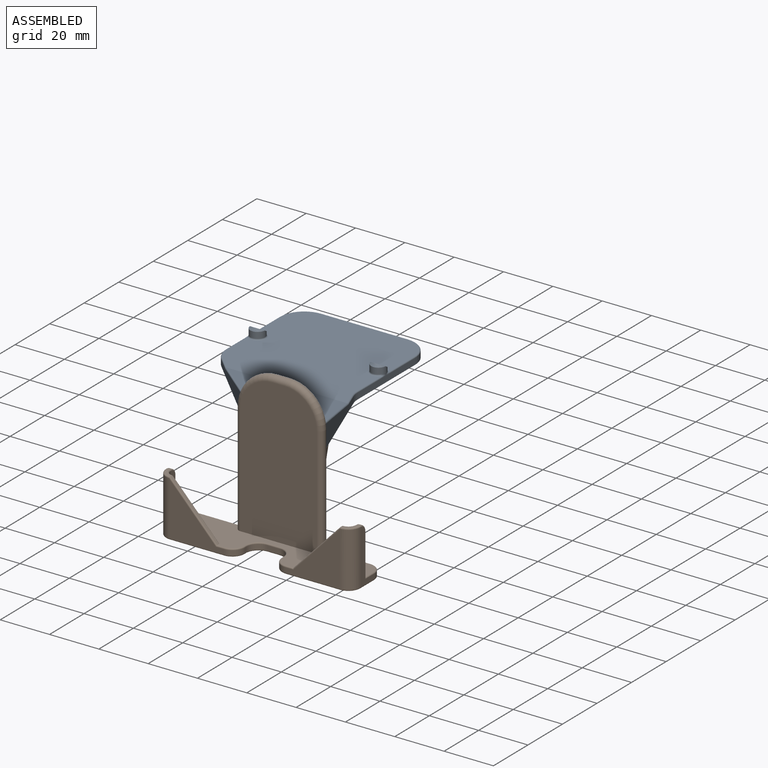
[diagram: assembled view]
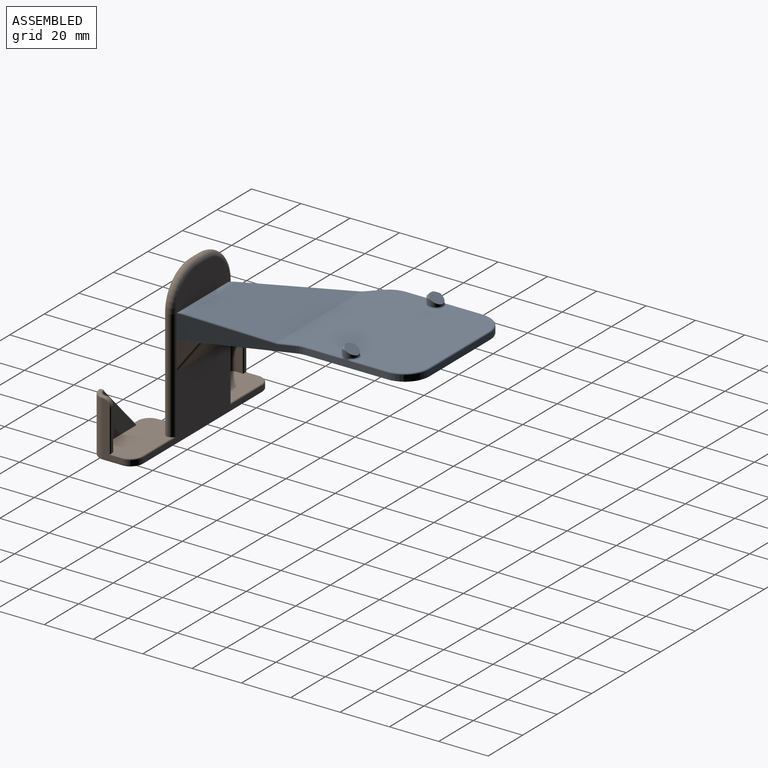
[diagram: assembled view, second angle]
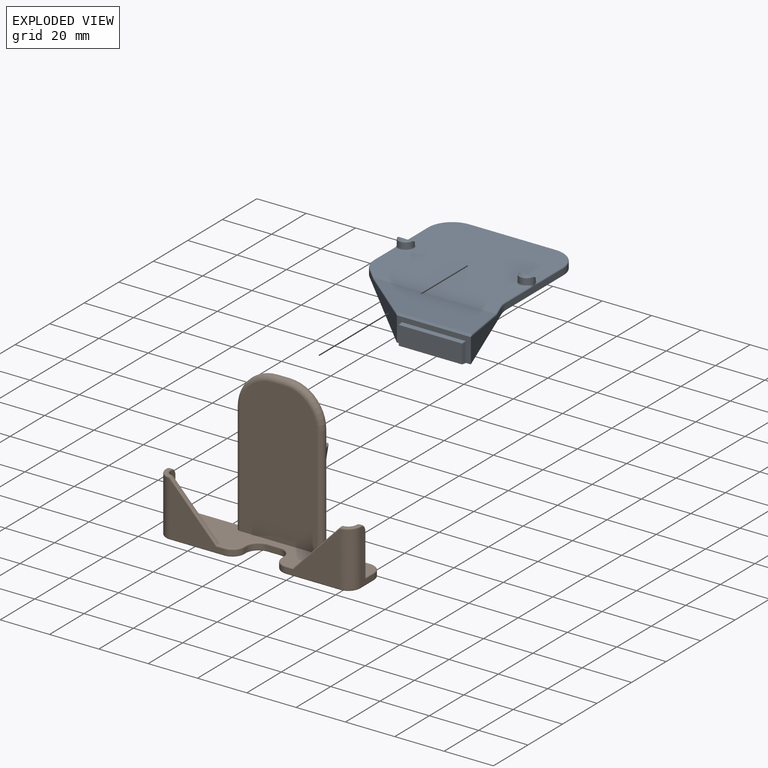
[diagram: exploded view]
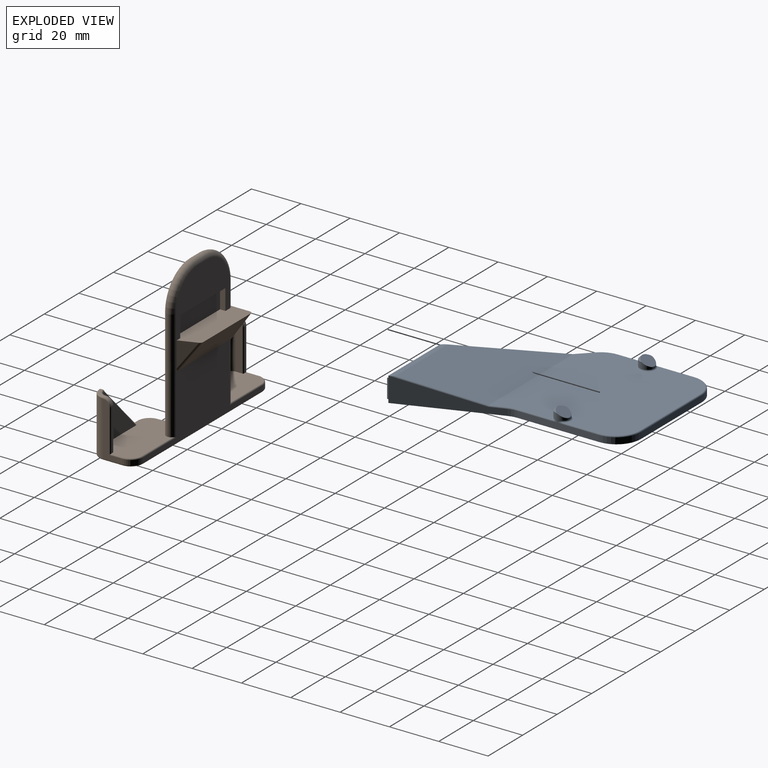
[diagram: exploded view, second angle]
ASSEMBLY  parts=2 mates=2
PART A: 58 faces, bbox 71.4x88.4x11 mm
  f0: plane 56.94x52.44mm, normal (0,0,1), area 2699.6mm2, adj f37,f38,f39,f40,f41,f43,f44,f45
  f1: plane 38.37x14.43mm, normal (0.94,0.35,0), area 230.8mm2, adj f6,f7,f23,f49,f51,f52
  f2: plane 33.19x2.5mm, normal (1,0,0), area 83mm2, adj f7,f23,f24,f32,f40,f42,f45
  f3: plane 35x2.5mm, normal (0,1,0), area 87.5mm2, adj f7,f24,f25,f38
  f4: plane 30.86x2.5mm, normal (-1,0,0), area 77.1mm2, adj f7,f25,f26,f30,f31,f43,f48
  f5: plane 37.07x37.07mm, normal (-0.71,-0.71,0), area 295.7mm2, adj f6,f7,f26,f53,f56,f57
  f6: plane 30.01x10.01mm, normal (0,-1,0), area 92mm2, adj f1,f5,f7,f16,f17,f19,f20,f52
  f7: plane 85x70mm, normal (0,0,-1), area 4130.1mm2, adj f1,f2,f3,f4,f5,f6,f18,f23
  f8: cylinder r=3mm len=6mm, axis (0,0,-1), area 35.6mm2, adj f13,f15,f27,f28,f44
  f9: plane 1.06x0.07mm, normal (0,0,1), area 0.1mm2, adj f13,f15
  f10: cylinder r=3mm len=6mm, axis (0,0,-1), area 35.6mm2, adj f12,f14,f34,f35,f39
  f11: plane 1.06x0.07mm, normal (0,0,1), area 0.1mm2, adj f12,f14
  f12: plane 6.57x5.5mm, normal (0,0.5,0.87), area 26.2mm2, adj f10,f11,f14
  f13: plane 6.57x5.5mm, normal (0,0.5,0.87), area 26.2mm2, adj f8,f9,f15
  f14: cone r=3mm half-angle=45deg, axis (0,0,-1), area 6.6mm2, adj f10,f11,f12
  f15: cone r=2mm half-angle=45deg, axis (0,0,-1), area 6.6mm2, adj f8,f9,f13
  f16: plane 31.29x1.94mm, normal (0,0,1), area 58.8mm2, adj f6,f52,f55,f57
  f17: plane 8x2mm, normal (-1,-0.09,0), area 15.7mm2, adj f6,f18,f20,f21
  f18: plane 26x2mm, normal (0,-0.09,-1), area 51.8mm2, adj f7,f17,f19,f21
  f19: plane 8x2mm, normal (1,-0.09,0), area 15.7mm2, adj f6,f18,f20,f21
  f20: plane 26x2mm, normal (0,-0.09,1), area 51.8mm2, adj f6,f17,f19,f21
  f21: plane 25.65x7.65mm, normal (0,-1,0), area 196.2mm2, adj f17,f18,f19,f20
  f22: plane 59.86x29.89mm, normal (0,0.23,0.97), area 1206.5mm2, adj f52,f54,f55,f57
  f23: cylinder r=10mm len=3.51mm, axis (0,0,-1), area 9mm2, adj f1,f2,f7,f47
  f24: cylinder r=10mm len=10mm, axis (0,0,1), area 39.3mm2, adj f2,f3,f7,f37
  f25: cylinder r=10mm len=10mm, axis (0,0,1), area 39.3mm2, adj f3,f4,f7,f41
  f26: cylinder r=10mm len=7.07mm, axis (0,0,-1), area 19.6mm2, adj f4,f5,f7,f50
  f27: bspline ~2.17x0.86mm, area 0.8mm2, adj f8,f28,f44,f46
  f28: bspline ~2.17x0.86mm, area 0.8mm2, adj f8,f27,f29,f44
  f29: bspline ~2.45x0.72mm, area 0.8mm2, adj f28,f30,f43,f44
  f30: bspline ~2.45x0.52mm, area 1.1mm2, adj f4,f29,f31,f43
  f31: bspline ~2.45x0.52mm, area 1.1mm2, adj f4,f30,f46,f48
  f32: bspline ~2.45x0.52mm, area 1.1mm2, adj f2,f33,f40,f42
  f33: bspline ~2.45x0.72mm, area 0.8mm2, adj f32,f34,f39,f40
  f34: bspline ~2.17x0.86mm, area 0.8mm2, adj f10,f33,f35,f39
  f35: bspline ~2.17x0.86mm, area 0.8mm2, adj f10,f34,f36,f39
  f36: bspline ~2.45x0.72mm, area 0.8mm2, adj f35,f39,f42,f45
  f37: torus R=9.5mm, axis (0,0,1), area 12.1mm2, adj f0,f24,f38,f40
  f38: cylinder r=0.5mm len=35mm, axis (1,0,0), area 27.5mm2, adj f0,f3,f37,f41
  f39: torus R=3.5mm, axis (0,0,1), area 11.9mm2, adj f0,f10,f33,f34,f35,f36
  f40: cylinder r=0.5mm len=14.59mm, axis (0,-1,0), area 11.4mm2, adj f0,f2,f32,f33,f37
  f41: torus R=9.5mm, axis (0,0,1), area 12.1mm2, adj f0,f25,f38,f43
  f42: bspline ~2.45x0.52mm, area 1.1mm2, adj f2,f32,f36,f45
  f43: cylinder r=0.5mm len=14.59mm, axis (0,1,0), area 11.4mm2, adj f0,f4,f29,f30,f41
  f44: torus R=3.5mm, axis (0,0,1), area 11.9mm2, adj f0,f8,f27,f28,f29,f46
  f45: cylinder r=0.5mm len=13.78mm, axis (0,-1,0), area 10.8mm2, adj f0,f2,f36,f42,f47
  f46: bspline ~2.45x0.72mm, area 0.8mm2, adj f27,f31,f44,f48
  f47: torus R=10.5mm, axis (0,0,1), area 2.9mm2, adj f0,f23,f45,f49
  f48: cylinder r=0.5mm len=11.45mm, axis (0,1,0), area 9mm2, adj f0,f4,f31,f46,f50
  f49: cylinder r=0.5mm len=6.24mm, axis (0.35,-0.94,0), area 5.1mm2, adj f0,f1,f47,f51
  f50: torus R=9.5mm, axis (0,0,1), area 6.1mm2, adj f0,f26,f48,f53
  f51: bspline ~0.61x0.53mm, area 0.1mm2, adj f1,f49,f52,f54
  f52: cylinder r=0.5mm len=32.1mm, axis (0.34,-0.91,0.21), area 25mm2, adj f1,f6,f16,f22,f51,f55
  f53: cylinder r=0.5mm len=5.72mm, axis (-0.71,0.71,0), area 6mm2, adj f0,f5,f50,f56
  f54: cylinder r=0.5mm len=48.88mm, axis (-1,0,0), area 5.6mm2, adj f0,f22,f51,f56
  f55: cylinder r=0.5mm len=30.18mm, axis (1,0,0), area 3.4mm2, adj f16,f22,f52,f57
  f56: bspline ~0.58x0.58mm, area 0.2mm2, adj f5,f53,f54,f57
  f57: cylinder r=0.5mm len=31.97mm, axis (0.7,-0.7,0.16), area 38mm2, adj f5,f6,f16,f22,f55,f56
PART B: 97 faces, bbox 80.6x27x65 mm
  f0: plane 32.89x10.49mm, normal (0,0,1), area 307mm2, adj f1,f3,f21,f36,f41,f42,f44,f94
  f1: plane 12.54x8.78mm, normal (-1,0,0), area 55mm2, adj f0,f36,f96
  f2: plane 58x31mm, normal (0,-1,0), area 1725.5mm2, adj f12,f36,f37,f38,f39,f40
  f3: plane 69.52x61.02mm, normal (0,1,0), area 1309.5mm2, adj f0,f21,f22,f23,f36,f37,f38,f39
  f4: plane 22x7.8mm, normal (1,0,0), area 64.3mm2, adj f23,f24,f54,f55,f56,f83
  f5: plane 22x21.77mm, normal (0,-1,0), area 229.7mm2, adj f24,f25,f50,f79,f93
  f6: plane 2x0.8mm, normal (-1,0,0), area 1.6mm2, adj f25,f26,f75,f91
  f7: plane 5x2mm, normal (0,-1,0), area 10mm2, adj f26,f27,f71,f89
  f8: plane 2x0.8mm, normal (1,0,0), area 1.6mm2, adj f27,f28,f70,f87
  f9: plane 22x21.77mm, normal (0,-1,0), area 229.7mm2, adj f28,f29,f57,f74,f85
  f10: plane 22x7.8mm, normal (-1,0,0), area 64.3mm2, adj f22,f29,f60,f62,f63,f78
  f11: plane 78x16.8mm, normal (0,0,-1), area 1124.5mm2, adj f69,f70,f71,f72,f73,f74,f75,f76
  f12: plane 78.2x17mm, normal (0,0,1), area 920.9mm2, adj f2,f13,f14,f15,f17,f18,f19,f30
  f13: plane 17x1mm, normal (0,1,0), area 17mm2, adj f12,f33,f62,f68
  f14: plane 19.27x18.31mm, normal (0,1,0), area 176.5mm2, adj f12,f32,f64
  f15: plane 19.5x2.5mm, normal (1,0,0), area 47.4mm2, adj f12,f32,f67,f68
  f16: plane 4.5x4.5mm, normal (0,0,1), area 6.3mm2, adj f33,f34,f58,f66
  f17: plane 17x1mm, normal (0,1,0), area 17mm2, adj f12,f31,f49,f56
  f18: plane 19.5x2.5mm, normal (-1,0,0), area 47.4mm2, adj f12,f30,f48,f49
  f19: plane 20.21x19.08mm, normal (0,1,0), area 176.5mm2, adj f12,f30,f45
  f20: plane 4.5x4.5mm, normal (0,0,1), area 6.3mm2, adj f31,f35,f47,f52
  f21: plane 31.03x12mm, normal (0,0.82,-0.57), area 409.6mm2, adj f0,f3,f36,f95,f96
  f22: cylinder r=5mm len=5mm, axis (0,0,-1), area 15.7mm2, adj f3,f10,f61,f80
  f23: cylinder r=5mm len=5mm, axis (0,0,1), area 15.7mm2, adj f3,f4,f53,f84
  f24: cylinder r=5mm len=22mm, axis (0,0,-1), area 172.8mm2, adj f4,f5,f50,f52,f81
  f25: cylinder r=5mm len=5mm, axis (0,0,-1), area 15.7mm2, adj f5,f6,f77,f92
  f26: cylinder r=5mm len=5mm, axis (0,0,1), area 15.7mm2, adj f6,f7,f73,f90
  f27: cylinder r=5mm len=5mm, axis (0,0,-1), area 15.7mm2, adj f7,f8,f69,f88
  f28: cylinder r=5mm len=5mm, axis (0,0,1), area 15.7mm2, adj f8,f9,f72,f86
  f29: cylinder r=5mm len=22mm, axis (0,0,1), area 172.8mm2, adj f9,f10,f57,f58,f76
  f30: cylinder r=3mm len=19.5mm, axis (0,0,-1), area 92.6mm2, adj f12,f18,f19,f46,f47
  f31: cylinder r=3mm len=3mm, axis (1,0,0), area 4.7mm2, adj f17,f20,f48,f54
  f32: cylinder r=3mm len=19.5mm, axis (0,0,-1), area 91.9mm2, adj f12,f14,f15,f65,f66
  f33: cylinder r=3mm len=3mm, axis (1,0,0), area 4.7mm2, adj f13,f16,f60,f67
  f34: plane 20x19mm, normal (0.72,0,0.69), area 27.6mm2, adj f12,f16,f57,f64,f65,f66
  f35: plane 20.77x19.77mm, normal (-0.72,0,0.69), area 27.6mm2, adj f12,f20,f45,f46,f47,f50
  f36: cylinder r=2mm len=45.5mm, axis (0,0,-1), area 245.4mm2, adj f0,f1,f2,f3,f12,f21,f38,f59
  f37: cylinder r=2mm len=45.5mm, axis (0,0,1), area 283.1mm2, adj f2,f3,f12,f39,f51
  f38: torus R=13mm, axis (0,-1,0), area 140.9mm2, adj f2,f3,f36,f40
  f39: torus R=13mm, axis (0,-1,0), area 140.9mm2, adj f2,f3,f37,f40
  f40: cylinder r=2mm len=5mm, axis (1,0,0), area 31.4mm2, adj f2,f3,f38,f39
  f41: plane 8.4x2.2mm, normal (-1,0,0), area 18.5mm2, adj f0,f3,f43,f44
  f42: plane 8.4x2.2mm, normal (1,0,0), area 18.5mm2, adj f0,f3,f43,f44
  f43: plane 26.2x2.2mm, normal (0,0,-1), area 57.6mm2, adj f3,f41,f42,f44
  f44: plane 26.2x8.4mm, normal (0,1,0), area 220.1mm2, adj f0,f41,f42,f43
  f45: cylinder r=0.5mm len=19.96mm, axis (-0.69,0,-0.72), area 10.5mm2, adj f12,f19,f35
  f46: bspline ~1.15x1.04mm, area 0.3mm2, adj f30,f35,f47
  f47: torus R=3.5mm, axis (0,0,1), area 3.9mm2, adj f20,f30,f35,f46,f48
  f48: torus R=2.5mm, axis (1,0,0), area 3.5mm2, adj f18,f31,f47,f49
  f49: cylinder r=0.5mm len=17mm, axis (0,0,-1), area 13.4mm2, adj f12,f17,f18,f48
  f50: cylinder r=0.5mm len=20.5mm, axis (0.69,0,0.72), area 21.6mm2, adj f5,f24,f35,f52,f93
  f51: cylinder r=0.5mm len=19mm, axis (1,0,0), area 14.4mm2, adj f3,f12,f37,f53
  f52: torus R=4.5mm, axis (0,0,1), area 5.9mm2, adj f20,f24,f50,f54
  f53: torus R=4.5mm, axis (0,0,-1), area 5.9mm2, adj f12,f23,f51,f55
  f54: torus R=2.5mm, axis (-1,0,0), area 3.5mm2, adj f4,f31,f52,f56
  f55: cylinder r=0.5mm len=5.3mm, axis (0,-1,0), area 4mm2, adj f4,f12,f53,f56
  f56: cylinder r=0.5mm len=17.5mm, axis (0,0,-1), area 13.5mm2, adj f4,f17,f54,f55
  f57: cylinder r=0.5mm len=20.5mm, axis (-0.69,0,0.72), area 21.6mm2, adj f9,f29,f34,f58,f85
  f58: torus R=4.5mm, axis (0,0,1), area 5.9mm2, adj f16,f29,f57,f60
  f59: cylinder r=0.5mm len=19mm, axis (1,0,0), area 14.4mm2, adj f3,f12,f36,f61
  f60: torus R=2.5mm, axis (-1,0,0), area 3.5mm2, adj f10,f33,f58,f62
  f61: torus R=4.5mm, axis (0,0,-1), area 5.9mm2, adj f12,f22,f59,f63
  f62: cylinder r=0.5mm len=17.5mm, axis (0,0,-1), area 13.5mm2, adj f10,f13,f60,f63
  f63: cylinder r=0.5mm len=5.3mm, axis (0,1,0), area 4mm2, adj f10,f12,f61,f62
  f64: cylinder r=0.5mm len=19.96mm, axis (-0.69,0,0.72), area 21.1mm2, adj f12,f14,f34,f65
  f65: bspline ~1.63x1.49mm, area 0.3mm2, adj f32,f34,f64,f66
  f66: torus R=3.5mm, axis (0,0,1), area 3.9mm2, adj f16,f32,f34,f65,f67
  f67: torus R=2.5mm, axis (1,0,0), area 3.5mm2, adj f15,f33,f66,f68
  f68: cylinder r=0.5mm len=17mm, axis (0,0,-1), area 13.4mm2, adj f12,f13,f15,f67
  f69: torus R=5.5mm, axis (0,0,-1), area 6.4mm2, adj f11,f27,f70,f71
  f70: cylinder r=0.5mm len=0.8mm, axis (0,1,0), area 0.6mm2, adj f8,f11,f69,f72
  f71: cylinder r=0.5mm len=5mm, axis (1,0,0), area 3.9mm2, adj f7,f11,f69,f73
  f72: torus R=4.5mm, axis (0,0,-1), area 5.9mm2, adj f11,f28,f70,f74
  f73: torus R=5.5mm, axis (0,0,-1), area 6.4mm2, adj f11,f26,f71,f75
  f74: cylinder r=0.5mm len=22mm, axis (1,0,0), area 17.3mm2, adj f9,f11,f72,f76
  f75: cylinder r=0.5mm len=0.8mm, axis (0,-1,0), area 0.6mm2, adj f6,f11,f73,f77
  f76: torus R=4.5mm, axis (0,0,-1), area 5.9mm2, adj f11,f29,f74,f78
  f77: torus R=4.5mm, axis (0,0,-1), area 5.9mm2, adj f11,f25,f75,f79
  f78: cylinder r=0.5mm len=7.8mm, axis (0,-1,0), area 6.1mm2, adj f10,f11,f76,f80
  f79: cylinder r=0.5mm len=22mm, axis (1,0,0), area 17.3mm2, adj f5,f11,f77,f81
  f80: torus R=4.5mm, axis (0,0,-1), area 5.9mm2, adj f11,f22,f78,f82
  f81: torus R=4.5mm, axis (0,0,-1), area 5.9mm2, adj f11,f24,f79,f83
  f82: cylinder r=0.5mm len=69mm, axis (-1,0,0), area 54.2mm2, adj f3,f11,f80,f84
  f83: cylinder r=0.5mm len=7.8mm, axis (0,1,0), area 6.1mm2, adj f4,f11,f81,f84
  f84: torus R=4.5mm, axis (0,0,-1), area 5.9mm2, adj f11,f23,f82,f83
  f85: cylinder r=0.5mm len=3.21mm, axis (-1,0,0), area 2.4mm2, adj f9,f12,f57,f86
  f86: torus R=4.5mm, axis (0,0,-1), area 5.9mm2, adj f12,f28,f85,f87
  f87: cylinder r=0.5mm len=0.8mm, axis (0,-1,0), area 0.6mm2, adj f8,f12,f86,f88
  f88: torus R=5.5mm, axis (0,0,-1), area 6.4mm2, adj f12,f27,f87,f89
  f89: cylinder r=0.5mm len=5mm, axis (-1,0,0), area 3.9mm2, adj f7,f12,f88,f90
  f90: torus R=5.5mm, axis (0,0,-1), area 6.4mm2, adj f12,f26,f89,f91
  f91: cylinder r=0.5mm len=0.8mm, axis (0,1,0), area 0.6mm2, adj f6,f12,f90,f92
  f92: torus R=4.5mm, axis (0,0,-1), area 5.9mm2, adj f12,f25,f91,f93
  f93: cylinder r=0.5mm len=3.21mm, axis (-1,0,0), area 2.4mm2, adj f5,f12,f50,f92
  f94: plane 10.18x7.13mm, normal (0.94,0.35,0), area 38.7mm2, adj f0,f3,f95
  f95: cylinder r=1mm len=12mm, axis (0.21,-0.56,-0.8), area 17.3mm2, adj f0,f3,f21,f94
  f96: cylinder r=1mm len=13.69mm, axis (0,0.57,0.82), area 23.3mm2, adj f0,f1,f21,f36
PLACE A at identity fixed
PLACE B t=(27.4,-42.5,-35)mm
MATE planar A.f6 <-> B.f3  axis (0,-1,0) through (12.5,-42.5,4.94)mm
MATE planar B.f0 <-> A.f7  axis (0,0,1) through (25.8,-39.53,0)mm
